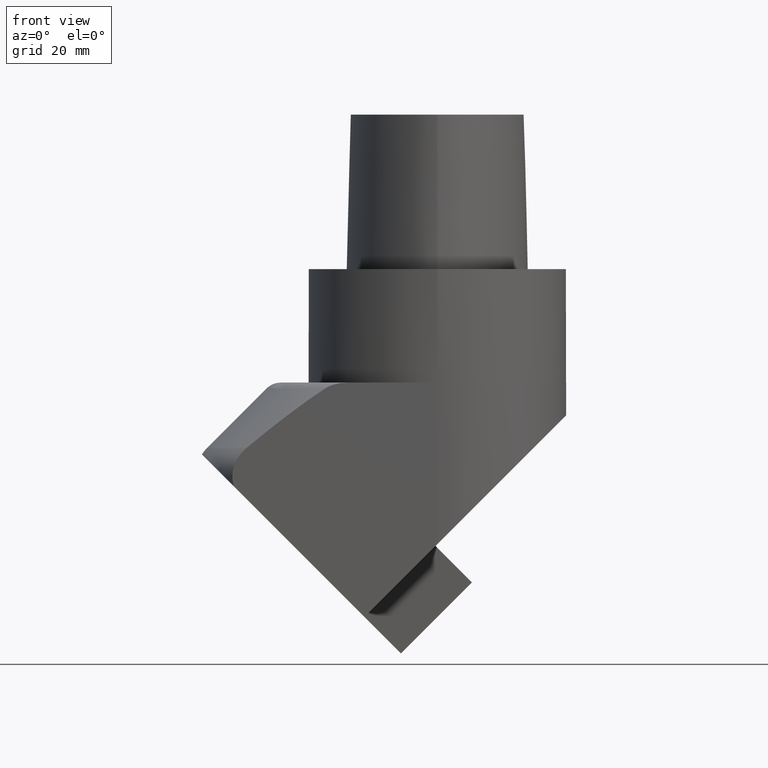
[diagram: clean part render]
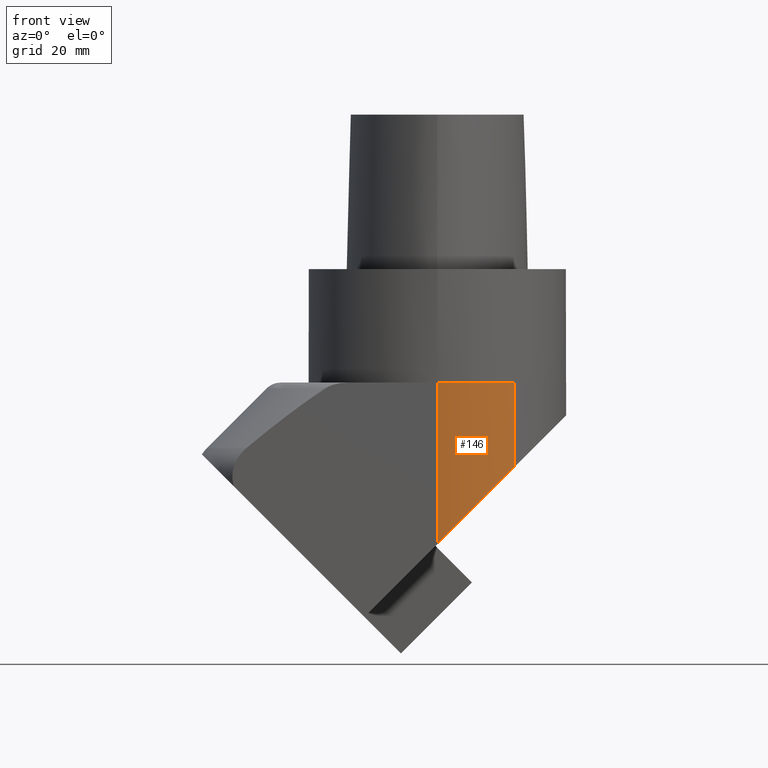
[diagram: same view with one face highlighted and labeled with its STEP entity id]
A machine part, front view. The second image highlights one B-rep face of the part: STEP entity #146.
In plain terms, the highlighted cylindrical surface (partial cylindrical patch) has radius 25.0002 mm, axis along (0, 0, 1).
Its self-contained STEP definition (entity closure, byte-faithful):
#146=ADVANCED_FACE('240[2]',(#397),#398,.T.);
#225=EDGE_CURVE('240[2]',#512,#468,#513,.T.);
#241=EDGE_CURVE('240[2]',#468,#485,#532,.T.);
#280=EDGE_CURVE('240[2]',#512,#502,#580,.T.);
#326=EDGE_CURVE('240[2]',#502,#485,#634,.T.);
#397=FACE_OUTER_BOUND('',#773,.T.);
#398=CYLINDRICAL_SURFACE('',#774,25.0001636640277);
#468=VERTEX_POINT('',#976);
#485=VERTEX_POINT('',#1007);
#502=VERTEX_POINT('',#1031);
#512=VERTEX_POINT('',#1049);
#513=LINE('',#1050,#1051);
#532=CIRCLE('',#1125,25.0001636640277);
#580=ELLIPSE('',#1235,35.3555705640712,25.0001636640277);
#634=LINE('',#1733,#1734);
#773=EDGE_LOOP('',(#1788,#1789,#1790,#1791));
#774=AXIS2_PLACEMENT_3D('',#1792,#1793,#1794);
#976=CARTESIAN_POINT('',(14.999999999999,-20.0000000000007,-21.999999989082));
#1007=CARTESIAN_POINT('',(-5.45546560060439E-005,-25.0000000000595,-21.999999989082));
#1031=CARTESIAN_POINT('',(-5.45546560041229E-005,-25.0000000000594,-53.3726379364309));
#1049=CARTESIAN_POINT('',(14.9999992498913,-20.0000005625815,-38.3725840904279));
#1050=CARTESIAN_POINT('',(14.999999999999,-20.0000000000006,-38.3725840904279));
#1051=VECTOR('',#1914,16.3725841013459);
#1125=AXIS2_PLACEMENT_3D('',#1945,#1946,#1947);
#1235=AXIS2_PLACEMENT_3D('',#2016,#2017,#2018);
#1733=CARTESIAN_POINT('',(-5.45546560027373E-005,-25.0000000000594,-53.3726379364309));
#1734=VECTOR('',#2077,31.3726379473489);
#1788=ORIENTED_EDGE('',*,*,#280,.F.);
#1789=ORIENTED_EDGE('',*,*,#225,.T.);
#1790=ORIENTED_EDGE('',*,*,#241,.T.);
#1791=ORIENTED_EDGE('',*,*,#326,.F.);
#1792=CARTESIAN_POINT('',(-5.45546560083976E-005,0.000163663968355275,-75.9999999890822));
#1793=DIRECTION('',(0.0,0.0,1.0));
#1794=DIRECTION('',(0.0,-1.0,0.0));
#1914=DIRECTION('',(0.0,0.0,1.0));
#1945=CARTESIAN_POINT('',(-5.45546560117042E-005,0.000163663968252502,-21.999999989082));
#1946=DIRECTION('',(-0.0,-0.0,-1.0));
#1947=DIRECTION('',(0.0,-1.0,0.0));
#2016=CARTESIAN_POINT('',(-5.45546560097832E-005,0.000163663968312211,-53.3726379364309));
#2017=DIRECTION('',(0.707106782163664,2.39324235488052E-025,-0.707106780209431));
#2018=DIRECTION('',(-0.707106780209431,1.18567278781502E-015,-0.707106782163664));
#2077=DIRECTION('',(0.0,0.0,1.0));